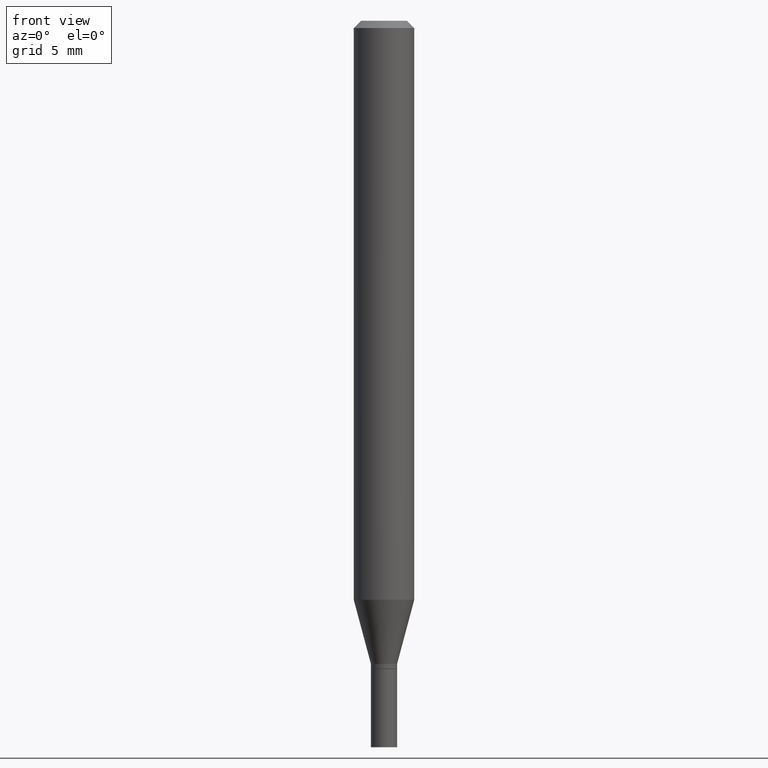
[diagram: clean part render]
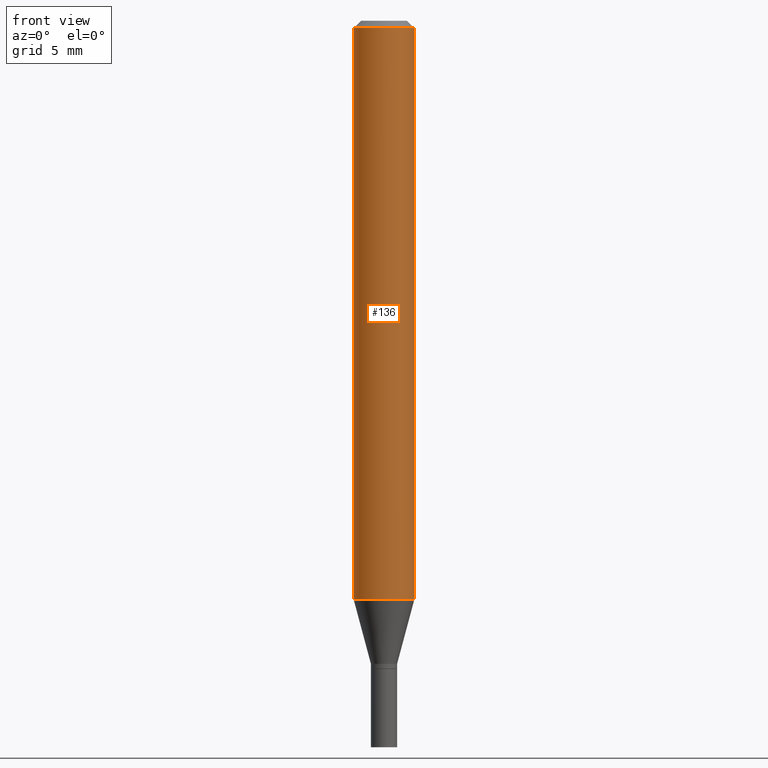
[diagram: same view with one face highlighted and labeled with its STEP entity id]
A machine part, front view. The second image highlights one B-rep face of the part: STEP entity #136.
In plain terms, the highlighted cylindrical surface (edge-blend (fillet) strip) has radius 1.5875 mm, axis along (-0, 0, 1).
Its self-contained STEP definition (entity closure, byte-faithful):
#12 = VECTOR ( 'NONE', #371, 39.37007874015748143 ) ;
#29 = DIRECTION ( 'NONE',  ( -2.445468806185136597E-29, 3.491481338843145583E-15, 1.000000000000000000 ) ) ;
#44 = ORIENTED_EDGE ( 'NONE', *, *, #160, .T. ) ;
#45 = DIRECTION ( 'NONE',  ( 1.000000000000000000, -6.982962677686266711E-15, 0.000000000000000000 ) ) ;
#50 = LINE ( 'NONE', #298, #85 ) ;
#52 = DIRECTION ( 'NONE',  ( -2.445468806185136597E-29, 3.491481338843145583E-15, 1.000000000000000000 ) ) ;
#57 = ORIENTED_EDGE ( 'NONE', *, *, #284, .F. ) ;
#60 = AXIS2_PLACEMENT_3D ( 'NONE', #395, #358, #45 ) ;
#61 = AXIS2_PLACEMENT_3D ( 'NONE', #367, #29, #306 ) ;
#64 = AXIS2_PLACEMENT_3D ( 'NONE', #368, #52, #261 ) ;
#85 = VECTOR ( 'NONE', #128, 39.37007874015748143 ) ;
#100 = FACE_OUTER_BOUND ( 'NONE', #422, .T. ) ;
#128 = DIRECTION ( 'NONE',  ( -2.445468806185136877E-29, 3.491481338843145188E-15, 1.000000000000000000 ) ) ;
#135 = CARTESIAN_POINT ( 'NONE',  ( -0.06250000000000000000, -1.669151162116327740E-15, -0.01499999999999999944 ) ) ;
#136 = ADVANCED_FACE ( 'NONE', ( #100 ), #408, .T. ) ;
#144 = CARTESIAN_POINT ( 'NONE',  ( 0.06250000000000000000, -4.888073874380388472E-16, -0.01499999999999999944 ) ) ;
#160 = EDGE_CURVE ( 'NONE', #246, #161, #251, .T. ) ;
#161 = VERTEX_POINT ( 'NONE', #270 ) ;
#177 = VERTEX_POINT ( 'NONE', #135 ) ;
#199 = LINE ( 'NONE', #231, #12 ) ;
#231 = CARTESIAN_POINT ( 'NONE',  ( 0.06250000000000000000, -4.364351673553916694E-16, 3.047610484872459871E-30 ) ) ;
#235 = EDGE_CURVE ( 'NONE', #161, #457, #199, .T. ) ;
#246 = VERTEX_POINT ( 'NONE', #463 ) ;
#251 = CIRCLE ( 'NONE', #61, 0.06250000000000000000 ) ;
#261 = DIRECTION ( 'NONE',  ( 1.000000000000000000, -6.982962677686266711E-15, 4.876176775795935793E-29 ) ) ;
#270 = CARTESIAN_POINT ( 'NONE',  ( 0.06250000000000000000, -4.610543691205524908E-15, -1.195512196331304677 ) ) ;
#284 = EDGE_CURVE ( 'NONE', #246, #177, #50, .T. ) ;
#298 = CARTESIAN_POINT ( 'NONE',  ( -0.06250000000000000000, 4.440892098500626162E-16, -3.074334431409316114E-30 ) ) ;
#306 = DIRECTION ( 'NONE',  ( 1.000000000000000000, -6.982962677686262766E-15, 0.000000000000000000 ) ) ;
#358 = DIRECTION ( 'NONE',  ( -2.445468806185136597E-29, 3.491481338843145583E-15, 1.000000000000000000 ) ) ;
#364 = EDGE_CURVE ( 'NONE', #177, #457, #458, .T. ) ;
#367 = CARTESIAN_POINT ( 'NONE',  ( 2.923587783542086622E-29, -4.174108523850133238E-15, -1.195512196331304677 ) ) ;
#368 = CARTESIAN_POINT ( 'NONE',  ( 0.000000000000000000, 0.000000000000000000, 0.000000000000000000 ) ) ;
#371 = DIRECTION ( 'NONE',  ( -2.445468806185136877E-29, 3.491481338843145188E-15, 1.000000000000000000 ) ) ;
#372 = ORIENTED_EDGE ( 'NONE', *, *, #364, .F. ) ;
#381 = ORIENTED_EDGE ( 'NONE', *, *, #235, .T. ) ;
#395 = CARTESIAN_POINT ( 'NONE',  ( 3.668203209277705088E-31, -5.237222008264718399E-17, -0.01499999999999999944 ) ) ;
#408 = CYLINDRICAL_SURFACE ( 'NONE', #64, 0.06250000000000000000 ) ;
#422 = EDGE_LOOP ( 'NONE', ( #57, #44, #381, #372 ) ) ;
#457 = VERTEX_POINT ( 'NONE', #144 ) ;
#458 = CIRCLE ( 'NONE', #60, 0.06250000000000000000 ) ;
#463 = CARTESIAN_POINT ( 'NONE',  ( -0.06250000000000000000, -3.730019314000071411E-15, -1.195512196331304677 ) ) ;